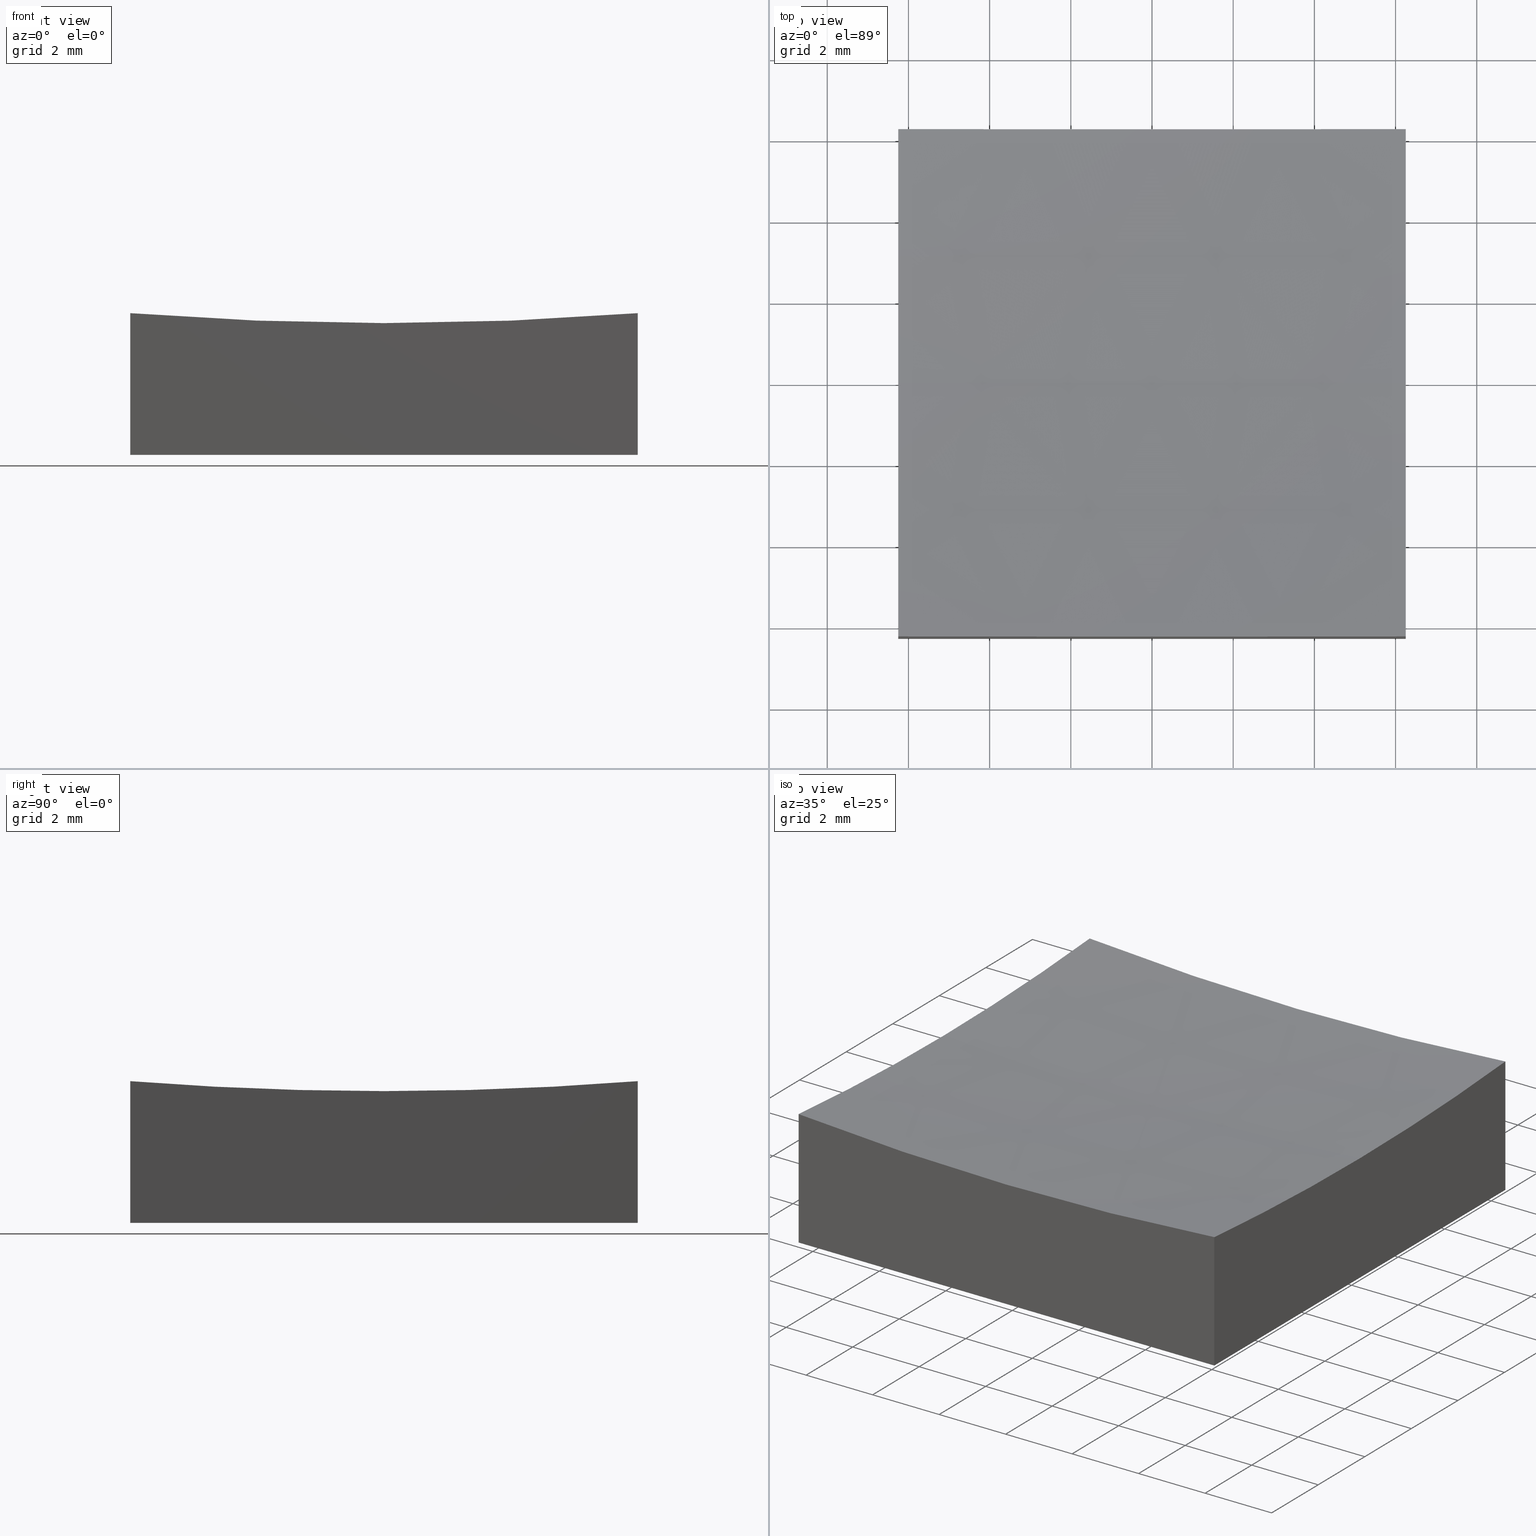
[diagram: canonical four-view strip — front | top / right | iso, engineering-drawing reading convention]
A machine part, canonical four-view strip (front | top / right | iso — engineering-drawing reading convention). The complete STEP part file that produces these views, byte-faithful:
ISO-10303-21;
HEADER;
FILE_DESCRIPTION (( 'STEP AP214' ),
    '1' );
FILE_NAME ('270017.STEP',
    '2020-06-01T08:56:18',
    ( '' ),
    ( '' ),
    'SwSTEP 2.0',
    'SolidWorks 2019',
    '' );
FILE_SCHEMA (( 'AUTOMOTIVE_DESIGN' ));
ENDSEC;

DATA;
#1 = DIRECTION ( 'NONE',  ( 1.224646799147353207E-16, 1.000000000000000000, -2.548175834661727704E-32 ) ) ;
#2 = ORIENTED_EDGE ( 'NONE', *, *, #41, .F. ) ;
#3 = DIRECTION ( 'NONE',  ( 0.0000000000000000000, -1.000000000000000000, -0.0000000000000000000 ) ) ;
#4 =( GEOMETRIC_REPRESENTATION_CONTEXT ( 3 ) GLOBAL_UNCERTAINTY_ASSIGNED_CONTEXT ( ( #191 ) ) GLOBAL_UNIT_ASSIGNED_CONTEXT ( ( #6, #123, #83 ) ) REPRESENTATION_CONTEXT ( 'NONE', 'WORKASPACE' ) );
#5 = ORIENTED_EDGE ( 'NONE', *, *, #129, .F. ) ;
#6 =( LENGTH_UNIT ( ) NAMED_UNIT ( * ) SI_UNIT ( .MILLI., .METRE. ) );
#7 = EDGE_LOOP ( 'NONE', ( #130, #68, #218, #5, #238 ) ) ;
#8 = CARTESIAN_POINT ( 'NONE',  ( 6.250000000000000000, -6.250000000000000888, 3.489780531053754409 ) ) ;
#9 = ORIENTED_EDGE ( 'NONE', *, *, #214, .F. ) ;
#10 = AXIS2_PLACEMENT_3D ( 'NONE', #75, #15, #132 ) ;
#11 = DIRECTION ( 'NONE',  ( 0.0000000000000000000, 0.0000000000000000000, -1.000000000000000000 ) ) ;
#12 = CARTESIAN_POINT ( 'NONE',  ( 0.0000000000000000000, 0.0000000000000000000, 0.0000000000000000000 ) ) ;
#13 = CARTESIAN_POINT ( 'NONE',  ( 6.250000000000000000, 6.250000000000000888, 0.0000000000000000000 ) ) ;
#14 = EDGE_CURVE ( 'NONE', #23, #124, #179, .T. ) ;
#15 = DIRECTION ( 'NONE',  ( 1.000000000000000000, 0.0000000000000000000, -0.0000000000000000000 ) ) ;
#16 = ADVANCED_FACE ( 'NONE', ( #110 ), #86, .F. ) ;
#17 = FACE_OUTER_BOUND ( 'NONE', #107, .T. ) ;
#18 = PRODUCT_DEFINITION_FORMATION_WITH_SPECIFIED_SOURCE ( '�κ�', '', #54, .NOT_KNOWN. ) ;
#19 = DIRECTION ( 'NONE',  ( 1.000000000000000000, 0.0000000000000000000, -0.0000000000000000000 ) ) ;
#20 = PLANE ( 'NONE',  #81 ) ;
#21 = ORIENTED_EDGE ( 'NONE', *, *, #244, .F. ) ;
#22 = LINE ( 'NONE', #120, #118 ) ;
#23 = VERTEX_POINT ( 'NONE', #8 ) ;
#24 = SURFACE_STYLE_FILL_AREA ( #140 ) ;
#25 = VERTEX_POINT ( 'NONE', #97 ) ;
#26 = MECHANICAL_DESIGN_GEOMETRIC_PRESENTATION_REPRESENTATION (  '', ( #219 ), #207 ) ;
#27 =( NAMED_UNIT ( * ) PLANE_ANGLE_UNIT ( ) SI_UNIT ( $, .RADIAN. ) );
#28 = ORIENTED_EDGE ( 'NONE', *, *, #129, .T. ) ;
#29 = SURFACE_STYLE_USAGE ( .BOTH. , #175 ) ;
#30 = ORIENTED_EDGE ( 'NONE', *, *, #164, .F. ) ;
#31 = APPLICATION_PROTOCOL_DEFINITION ( 'draft international standard', 'automotive_design', 1998, #201 ) ;
#32 = DIRECTION ( 'NONE',  ( 1.000000000000000000, 0.0000000000000000000, 0.0000000000000000000 ) ) ;
#33 = APPLICATION_CONTEXT ( 'automotive_design' ) ;
#34 = DIRECTION ( 'NONE',  ( -1.000000000000000000, 0.0000000000000000000, -0.0000000000000000000 ) ) ;
#35 = PLANE ( 'NONE',  #87 ) ;
#36 = ADVANCED_FACE ( 'NONE', ( #223 ), #35, .F. ) ;
#37 = PLANE ( 'NONE',  #150 ) ;
#38 = AXIS2_PLACEMENT_3D ( 'NONE', #185, #133, #151 ) ;
#39 = DIRECTION ( 'NONE',  ( 0.0000000000000000000, 0.0000000000000000000, 1.000000000000000000 ) ) ;
#40 = SPHERICAL_SURFACE ( 'NONE', #93, 79.99999999999998579 ) ;
#41 = EDGE_CURVE ( 'NONE', #25, #109, #228, .T. ) ;
#42 = APPLICATION_PROTOCOL_DEFINITION ( 'draft international standard', 'automotive_design', 1998, #33 ) ;
#43 = CARTESIAN_POINT ( 'NONE',  ( -6.250000000000000000, -6.250000000000000888, 0.0000000000000000000 ) ) ;
#44 = AXIS2_PLACEMENT_3D ( 'NONE', #12, #240, #225 ) ;
#45 = ORIENTED_EDGE ( 'NONE', *, *, #47, .T. ) ;
#46 = SURFACE_SIDE_STYLE ('',( #24 ) ) ;
#47 = EDGE_CURVE ( 'NONE', #124, #234, #146, .T. ) ;
#48 = COLOUR_RGB ( '',1.000000000000000000, 1.000000000000000000, 1.000000000000000000 ) ;
#49 = CARTESIAN_POINT ( 'NONE',  ( 6.250000000000000000, 0.0000000000000000000, 83.00000000000000000 ) ) ;
#50 = VERTEX_POINT ( 'NONE', #181 ) ;
#51 = EDGE_LOOP ( 'NONE', ( #178, #105, #60, #126 ) ) ;
#52 = DIRECTION ( 'NONE',  ( 0.0000000000000000000, 1.000000000000000000, 0.0000000000000000000 ) ) ;
#53 = DIRECTION ( 'NONE',  ( -0.0000000000000000000, 0.0000000000000000000, -1.000000000000000000 ) ) ;
#54 = PRODUCT ( '270017', '270017', '', ( #177 ) ) ;
#55 = CARTESIAN_POINT ( 'NONE',  ( -6.250000000000000000, 6.250000000000000888, 10.00000000000000000 ) ) ;
#56 = CARTESIAN_POINT ( 'NONE',  ( -6.250000000000000000, 0.0000000000000000000, 83.00000000000000000 ) ) ;
#57 = EDGE_CURVE ( 'NONE', #139, #160, #241, .T. ) ;
#58 = CARTESIAN_POINT ( 'NONE',  ( 1.016456843292302992E-14, 0.0000000000000000000, 83.00000000000000000 ) ) ;
#59 = AXIS2_PLACEMENT_3D ( 'NONE', #55, #208, #53 ) ;
#60 = ORIENTED_EDGE ( 'NONE', *, *, #184, .T. ) ;
#61 = DIRECTION ( 'NONE',  ( -0.0000000000000000000, 0.0000000000000000000, -1.000000000000000000 ) ) ;
#62 = ORIENTED_EDGE ( 'NONE', *, *, #143, .F. ) ;
#63 = PRODUCT_DEFINITION_CONTEXT ( 'detailed design', #201, 'design' ) ;
#64 = EDGE_LOOP ( 'NONE', ( #197, #28, #221, #217 ) ) ;
#65 = SHAPE_DEFINITION_REPRESENTATION ( #95, #247 ) ;
#66 = CIRCLE ( 'NONE', #10, 79.75548570474634857 ) ;
#67 = VERTEX_POINT ( 'NONE', #188 ) ;
#68 = ORIENTED_EDGE ( 'NONE', *, *, #104, .T. ) ;
#69 = DIRECTION ( 'NONE',  ( 0.0000000000000000000, 0.0000000000000000000, -1.000000000000000000 ) ) ;
#70 = DIRECTION ( 'NONE',  ( 0.0000000000000000000, 1.000000000000000000, 0.0000000000000000000 ) ) ;
#71 = AXIS2_PLACEMENT_3D ( 'NONE', #49, #128, #199 ) ;
#72 = DIRECTION ( 'NONE',  ( 0.0000000000000000000, -0.0000000000000000000, 1.000000000000000000 ) ) ;
#73 = AXIS2_PLACEMENT_3D ( 'NONE', #115, #202, #152 ) ;
#74 = DIRECTION ( 'NONE',  ( 0.0000000000000000000, -1.000000000000000000, 0.0000000000000000000 ) ) ;
#75 = CARTESIAN_POINT ( 'NONE',  ( -6.250000000000000000, 0.0000000000000000000, 83.00000000000000000 ) ) ;
#76 = VECTOR ( 'NONE', #74, 1000.000000000000000 ) ;
#77 = LINE ( 'NONE', #138, #203 ) ;
#78 = DIRECTION ( 'NONE',  ( 0.0000000000000000000, 0.0000000000000000000, -1.000000000000000000 ) ) ;
#79 = ORIENTED_EDGE ( 'NONE', *, *, #214, .T. ) ;
#80 = CARTESIAN_POINT ( 'NONE',  ( 6.250000000000000000, 6.250000000000000888, 10.00000000000000000 ) ) ;
#81 = AXIS2_PLACEMENT_3D ( 'NONE', #80, #211, #61 ) ;
#82 = ORIENTED_EDGE ( 'NONE', *, *, #101, .F. ) ;
#83 =( NAMED_UNIT ( * ) SI_UNIT ( $, .STERADIAN. ) SOLID_ANGLE_UNIT ( ) );
#84 = ORIENTED_EDGE ( 'NONE', *, *, #14, .T. ) ;
#85 = ADVANCED_FACE ( 'NONE', ( #145 ), #147, .T. ) ;
#86 = SPHERICAL_SURFACE ( 'NONE', #198, 79.99999999999998579 ) ;
#87 = AXIS2_PLACEMENT_3D ( 'NONE', #135, #239, #229 ) ;
#88 = ORIENTED_EDGE ( 'NONE', *, *, #251, .T. ) ;
#89 = CARTESIAN_POINT ( 'NONE',  ( 6.250000000000000000, -6.250000000000000888, 0.0000000000000000000 ) ) ;
#90 = CARTESIAN_POINT ( 'NONE',  ( 6.250000000000000000, 6.250000000000000888, 10.00000000000000000 ) ) ;
#91 = UNCERTAINTY_MEASURE_WITH_UNIT (LENGTH_MEASURE( 1.000000000000000082E-05 ), #220, 'distance_accuracy_value', 'NONE');
#92 = LINE ( 'NONE', #90, #248 ) ;
#93 = AXIS2_PLACEMENT_3D ( 'NONE', #158, #192, #136 ) ;
#94 = EDGE_CURVE ( 'NONE', #67, #139, #99, .T. ) ;
#95 = PRODUCT_DEFINITION_SHAPE ( 'NONE', 'NONE',  #174 ) ;
#96 = CIRCLE ( 'NONE', #127, 79.99999999999998579 ) ;
#97 = CARTESIAN_POINT ( 'NONE',  ( -6.250000000000000000, 7.654042494670950704E-16, 3.244514295253658531 ) ) ;
#98 = PRODUCT_RELATED_PRODUCT_CATEGORY ( 'part', '', ( #54 ) ) ;
#99 = LINE ( 'NONE', #182, #121 ) ;
#100 =( NAMED_UNIT ( * ) PLANE_ANGLE_UNIT ( ) SI_UNIT ( $, .RADIAN. ) );
#101 = EDGE_CURVE ( 'NONE', #50, #25, #66, .T. ) ;
#102 = FILL_AREA_STYLE ('',( #189 ) ) ;
#103 =( LENGTH_UNIT ( ) NAMED_UNIT ( * ) SI_UNIT ( .MILLI., .METRE. ) );
#104 = EDGE_CURVE ( 'NONE', #23, #160, #230, .T. ) ;
#105 = ORIENTED_EDGE ( 'NONE', *, *, #112, .T. ) ;
#106 = DIRECTION ( 'NONE',  ( -1.000000000000000000, 1.224646799147353207E-16, 0.0000000000000000000 ) ) ;
#107 = EDGE_LOOP ( 'NONE', ( #111, #176, #195, #88, #233 ) ) ;
#108 = COLOUR_RGB ( '',1.000000000000000000, 1.000000000000000000, 1.000000000000000000 ) ;
#109 = VERTEX_POINT ( 'NONE', #117 ) ;
#110 = FACE_OUTER_BOUND ( 'NONE', #200, .T. ) ;
#111 = ORIENTED_EDGE ( 'NONE', *, *, #184, .F. ) ;
#112 = EDGE_CURVE ( 'NONE', #23, #50, #137, .T. ) ;
#113 = DIRECTION ( 'NONE',  ( 0.0000000000000000000, -1.000000000000000000, 0.0000000000000000000 ) ) ;
#114 = CARTESIAN_POINT ( 'NONE',  ( -6.250000000000000000, -6.250000000000000888, 0.0000000000000000000 ) ) ;
#115 = CARTESIAN_POINT ( 'NONE',  ( 6.250000000000000000, 0.0000000000000000000, 83.00000000000000000 ) ) ;
#116 = PRESENTATION_LAYER_ASSIGNMENT (  '', '', ( #219 ) ) ;
#117 = CARTESIAN_POINT ( 'NONE',  ( -6.250000000000000000, 6.250000000000000888, 3.489780531053754409 ) ) ;
#118 = VECTOR ( 'NONE', #122, 1000.000000000000000 ) ;
#119 = LINE ( 'NONE', #114, #242 ) ;
#120 = CARTESIAN_POINT ( 'NONE',  ( -6.250000000000000000, 6.250000000000000888, 10.00000000000000000 ) ) ;
#121 = VECTOR ( 'NONE', #32, 1000.000000000000000 ) ;
#122 = DIRECTION ( 'NONE',  ( -0.0000000000000000000, -0.0000000000000000000, -1.000000000000000000 ) ) ;
#123 =( NAMED_UNIT ( * ) PLANE_ANGLE_UNIT ( ) SI_UNIT ( $, .RADIAN. ) );
#124 = VERTEX_POINT ( 'NONE', #165 ) ;
#125 = CARTESIAN_POINT ( 'NONE',  ( 6.250000000000000000, 6.250000000000000888, 3.489780531053754409 ) ) ;
#126 = ORIENTED_EDGE ( 'NONE', *, *, #164, .T. ) ;
#127 = AXIS2_PLACEMENT_3D ( 'NONE', #58, #1, #106 ) ;
#128 = DIRECTION ( 'NONE',  ( 1.000000000000000000, 0.0000000000000000000, -0.0000000000000000000 ) ) ;
#129 = EDGE_CURVE ( 'NONE', #234, #139, #92, .T. ) ;
#130 = ORIENTED_EDGE ( 'NONE', *, *, #14, .F. ) ;
#131 = DIRECTION ( 'NONE',  ( 0.0000000000000000000, 1.000000000000000000, 0.0000000000000000000 ) ) ;
#132 = DIRECTION ( 'NONE',  ( 0.0000000000000000000, 0.0000000000000000000, -1.000000000000000000 ) ) ;
#133 = DIRECTION ( 'NONE',  ( 0.0000000000000000000, 1.000000000000000000, 0.0000000000000000000 ) ) ;
#134 = DIRECTION ( 'NONE',  ( 1.000000000000000000, 0.0000000000000000000, -1.734723475976807341E-16 ) ) ;
#135 = CARTESIAN_POINT ( 'NONE',  ( -6.250000000000000000, -6.250000000000000888, 10.00000000000000000 ) ) ;
#136 = DIRECTION ( 'NONE',  ( 1.000000000000000000, 0.0000000000000000000, -1.734723475976807341E-16 ) ) ;
#137 = CIRCLE ( 'NONE', #169, 79.75548570474634857 ) ;
#138 = CARTESIAN_POINT ( 'NONE',  ( -6.250000000000000000, -6.250000000000000888, 10.00000000000000000 ) ) ;
#139 = VERTEX_POINT ( 'NONE', #250 ) ;
#140 = FILL_AREA_STYLE ('',( #155 ) ) ;
#141 = VERTEX_POINT ( 'NONE', #204 ) ;
#142 = EDGE_LOOP ( 'NONE', ( #162, #156, #30, #62 ) ) ;
#143 = EDGE_CURVE ( 'NONE', #67, #215, #148, .T. ) ;
#144 = PRESENTATION_STYLE_ASSIGNMENT (( #29 ) ) ;
#145 = FACE_OUTER_BOUND ( 'NONE', #64, .T. ) ;
#146 = CIRCLE ( 'NONE', #73, 79.75548570474634857 ) ;
#147 = PLANE ( 'NONE',  #237 ) ;
#148 = LINE ( 'NONE', #209, #76 ) ;
#149 = ADVANCED_FACE ( 'NONE', ( #163 ), #37, .T. ) ;
#150 = AXIS2_PLACEMENT_3D ( 'NONE', #227, #11, #34 ) ;
#151 = DIRECTION ( 'NONE',  ( 0.0000000000000000000, 0.0000000000000000000, 1.000000000000000000 ) ) ;
#152 = DIRECTION ( 'NONE',  ( 0.0000000000000000000, 0.0000000000000000000, -1.000000000000000000 ) ) ;
#153 = MECHANICAL_DESIGN_GEOMETRIC_PRESENTATION_REPRESENTATION (  '', ( #186 ), #4 ) ;
#154 = SURFACE_STYLE_FILL_AREA ( #102 ) ;
#155 = FILL_AREA_STYLE_COLOUR ( '', #108 ) ;
#156 = ORIENTED_EDGE ( 'NONE', *, *, #57, .T. ) ;
#157 = PRESENTATION_LAYER_ASSIGNMENT (  '', '', ( #186 ) ) ;
#158 = CARTESIAN_POINT ( 'NONE',  ( 1.016456843292302992E-14, 0.0000000000000000000, 83.00000000000000000 ) ) ;
#159 = ORIENTED_EDGE ( 'NONE', *, *, #244, .T. ) ;
#160 = VERTEX_POINT ( 'NONE', #89 ) ;
#161 = ORIENTED_EDGE ( 'NONE', *, *, #112, .F. ) ;
#162 = ORIENTED_EDGE ( 'NONE', *, *, #94, .T. ) ;
#163 = FACE_OUTER_BOUND ( 'NONE', #142, .T. ) ;
#164 = EDGE_CURVE ( 'NONE', #215, #160, #119, .T. ) ;
#165 = CARTESIAN_POINT ( 'NONE',  ( 6.250000000000000000, 0.0000000000000000000, 3.244514295253658531 ) ) ;
#166 =( GEOMETRIC_REPRESENTATION_CONTEXT ( 3 ) GLOBAL_UNCERTAINTY_ASSIGNED_CONTEXT ( ( #235 ) ) GLOBAL_UNIT_ASSIGNED_CONTEXT ( ( #103, #100, #252 ) ) REPRESENTATION_CONTEXT ( 'NONE', 'WORKASPACE' ) );
#167 = CARTESIAN_POINT ( 'NONE',  ( 1.016456843292302992E-14, 0.0000000000000000000, 83.00000000000000000 ) ) ;
#168 = ADVANCED_FACE ( 'NONE', ( #17 ), #205, .F. ) ;
#169 = AXIS2_PLACEMENT_3D ( 'NONE', #172, #52, #39 ) ;
#170 = EDGE_CURVE ( 'NONE', #234, #109, #187, .T. ) ;
#171 = CARTESIAN_POINT ( 'NONE',  ( -6.250000000000000000, 6.250000000000000888, 10.00000000000000000 ) ) ;
#172 = CARTESIAN_POINT ( 'NONE',  ( 1.016456843292302992E-14, -6.250000000000000888, 83.00000000000000000 ) ) ;
#173 = CLOSED_SHELL ( 'NONE', ( #16, #85, #168, #36, #190, #149, #246 ) ) ;
#174 = PRODUCT_DEFINITION ( 'δ֪', '', #18, #63 ) ;
#175 = SURFACE_SIDE_STYLE ('',( #154 ) ) ;
#176 = ORIENTED_EDGE ( 'NONE', *, *, #101, .T. ) ;
#177 = PRODUCT_CONTEXT ( 'NONE', #33, 'mechanical' ) ;
#178 = ORIENTED_EDGE ( 'NONE', *, *, #104, .F. ) ;
#179 = CIRCLE ( 'NONE', #71, 79.75548570474634857 ) ;
#180 = DIRECTION ( 'NONE',  ( -0.0000000000000000000, -0.0000000000000000000, -1.000000000000000000 ) ) ;
#181 = CARTESIAN_POINT ( 'NONE',  ( -6.250000000000000000, -6.250000000000000888, 3.489780531053754409 ) ) ;
#182 = CARTESIAN_POINT ( 'NONE',  ( -6.250000000000000000, 6.250000000000000888, 0.0000000000000000000 ) ) ;
#183 = AXIS2_PLACEMENT_3D ( 'NONE', #56, #19, #69 ) ;
#184 = EDGE_CURVE ( 'NONE', #50, #215, #77, .T. ) ;
#185 = CARTESIAN_POINT ( 'NONE',  ( 1.016456843292302992E-14, 6.250000000000000888, 83.00000000000000000 ) ) ;
#186 = STYLED_ITEM ( 'NONE', ( #196 ), #245 ) ;
#187 = CIRCLE ( 'NONE', #38, 79.75548570474634857 ) ;
#188 = CARTESIAN_POINT ( 'NONE',  ( -6.250000000000000000, 6.250000000000000888, 0.0000000000000000000 ) ) ;
#189 = FILL_AREA_STYLE_COLOUR ( '', #48 ) ;
#190 = ADVANCED_FACE ( 'NONE', ( #212 ), #20, .T. ) ;
#191 = UNCERTAINTY_MEASURE_WITH_UNIT (LENGTH_MEASURE( 1.000000000000000082E-05 ), #6, 'distance_accuracy_value', 'NONE');
#192 = DIRECTION ( 'NONE',  ( 0.0000000000000000000, 1.000000000000000000, 0.0000000000000000000 ) ) ;
#193 = ORIENTED_EDGE ( 'NONE', *, *, #170, .T. ) ;
#194 = FACE_OUTER_BOUND ( 'NONE', #222, .T. ) ;
#195 = ORIENTED_EDGE ( 'NONE', *, *, #41, .T. ) ;
#196 = PRESENTATION_STYLE_ASSIGNMENT (( #216 ) ) ;
#197 = ORIENTED_EDGE ( 'NONE', *, *, #170, .F. ) ;
#198 = AXIS2_PLACEMENT_3D ( 'NONE', #167, #70, #134 ) ;
#199 = DIRECTION ( 'NONE',  ( 0.0000000000000000000, 0.0000000000000000000, -1.000000000000000000 ) ) ;
#200 = EDGE_LOOP ( 'NONE', ( #9, #159, #82, #161, #84 ) ) ;
#201 = APPLICATION_CONTEXT ( 'automotive_design' ) ;
#202 = DIRECTION ( 'NONE',  ( 1.000000000000000000, 0.0000000000000000000, -0.0000000000000000000 ) ) ;
#203 = VECTOR ( 'NONE', #232, 1000.000000000000000 ) ;
#204 = CARTESIAN_POINT ( 'NONE',  ( -1.582792158443177910E-15, 0.0000000000000000000, 3.000000000000016431 ) ) ;
#205 = PLANE ( 'NONE',  #59 ) ;
#206 = CIRCLE ( 'NONE', #210, 79.99999999999998579 ) ;
#207 =( GEOMETRIC_REPRESENTATION_CONTEXT ( 3 ) GLOBAL_UNCERTAINTY_ASSIGNED_CONTEXT ( ( #91 ) ) GLOBAL_UNIT_ASSIGNED_CONTEXT ( ( #220, #27, #236 ) ) REPRESENTATION_CONTEXT ( 'NONE', 'WORKASPACE' ) );
#208 = DIRECTION ( 'NONE',  ( 1.000000000000000000, 0.0000000000000000000, -0.0000000000000000000 ) ) ;
#209 = CARTESIAN_POINT ( 'NONE',  ( -6.250000000000000000, 6.250000000000000888, 0.0000000000000000000 ) ) ;
#210 = AXIS2_PLACEMENT_3D ( 'NONE', #231, #3, #78 ) ;
#211 = DIRECTION ( 'NONE',  ( 1.000000000000000000, 0.0000000000000000000, -0.0000000000000000000 ) ) ;
#212 = FACE_OUTER_BOUND ( 'NONE', #7, .T. ) ;
#213 = VECTOR ( 'NONE', #113, 1000.000000000000000 ) ;
#214 = EDGE_CURVE ( 'NONE', #141, #124, #206, .T. ) ;
#215 = VERTEX_POINT ( 'NONE', #43 ) ;
#216 = SURFACE_STYLE_USAGE ( .BOTH. , #46 ) ;
#217 = ORIENTED_EDGE ( 'NONE', *, *, #251, .F. ) ;
#218 = ORIENTED_EDGE ( 'NONE', *, *, #57, .F. ) ;
#219 = STYLED_ITEM ( 'NONE', ( #144 ), #247 ) ;
#220 =( LENGTH_UNIT ( ) NAMED_UNIT ( * ) SI_UNIT ( .MILLI., .METRE. ) );
#221 = ORIENTED_EDGE ( 'NONE', *, *, #94, .F. ) ;
#222 = EDGE_LOOP ( 'NONE', ( #21, #79, #45, #193, #2 ) ) ;
#223 = FACE_OUTER_BOUND ( 'NONE', #51, .T. ) ;
#224 = VECTOR ( 'NONE', #180, 1000.000000000000000 ) ;
#225 = DIRECTION ( 'NONE',  ( 1.000000000000000000, 0.0000000000000000000, 0.0000000000000000000 ) ) ;
#226 = DIRECTION ( 'NONE',  ( 1.000000000000000000, 0.0000000000000000000, 0.0000000000000000000 ) ) ;
#227 = CARTESIAN_POINT ( 'NONE',  ( 0.0000000000000000000, 0.0000000000000000000, 0.0000000000000000000 ) ) ;
#228 = CIRCLE ( 'NONE', #183, 79.75548570474634857 ) ;
#229 = DIRECTION ( 'NONE',  ( 0.0000000000000000000, -0.0000000000000000000, 1.000000000000000000 ) ) ;
#230 = LINE ( 'NONE', #249, #224 ) ;
#231 = CARTESIAN_POINT ( 'NONE',  ( 1.016456843292302992E-14, 0.0000000000000000000, 83.00000000000000000 ) ) ;
#232 = DIRECTION ( 'NONE',  ( -0.0000000000000000000, -0.0000000000000000000, -1.000000000000000000 ) ) ;
#233 = ORIENTED_EDGE ( 'NONE', *, *, #143, .T. ) ;
#234 = VERTEX_POINT ( 'NONE', #125 ) ;
#235 = UNCERTAINTY_MEASURE_WITH_UNIT (LENGTH_MEASURE( 1.000000000000000082E-05 ), #103, 'distance_accuracy_value', 'NONE');
#236 =( NAMED_UNIT ( * ) SI_UNIT ( $, .STERADIAN. ) SOLID_ANGLE_UNIT ( ) );
#237 = AXIS2_PLACEMENT_3D ( 'NONE', #171, #131, #72 ) ;
#238 = ORIENTED_EDGE ( 'NONE', *, *, #47, .F. ) ;
#239 = DIRECTION ( 'NONE',  ( 0.0000000000000000000, 1.000000000000000000, 0.0000000000000000000 ) ) ;
#240 = DIRECTION ( 'NONE',  ( 0.0000000000000000000, 0.0000000000000000000, 1.000000000000000000 ) ) ;
#241 = LINE ( 'NONE', #13, #213 ) ;
#242 = VECTOR ( 'NONE', #226, 1000.000000000000000 ) ;
#243 = DIRECTION ( 'NONE',  ( -0.0000000000000000000, -0.0000000000000000000, -1.000000000000000000 ) ) ;
#244 = EDGE_CURVE ( 'NONE', #141, #25, #96, .T. ) ;
#245 = MANIFOLD_SOLID_BREP ( '�г�-��ת2', #173 ) ;
#246 = ADVANCED_FACE ( 'NONE', ( #194 ), #40, .F. ) ;
#247 = ADVANCED_BREP_SHAPE_REPRESENTATION ( '270017', ( #245, #44 ), #166 ) ;
#248 = VECTOR ( 'NONE', #243, 1000.000000000000000 ) ;
#249 = CARTESIAN_POINT ( 'NONE',  ( 6.250000000000000000, -6.250000000000000888, 10.00000000000000000 ) ) ;
#250 = CARTESIAN_POINT ( 'NONE',  ( 6.250000000000000000, 6.250000000000000888, 0.0000000000000000000 ) ) ;
#251 = EDGE_CURVE ( 'NONE', #109, #67, #22, .T. ) ;
#252 =( NAMED_UNIT ( * ) SI_UNIT ( $, .STERADIAN. ) SOLID_ANGLE_UNIT ( ) );
ENDSEC;
END-ISO-10303-21;
